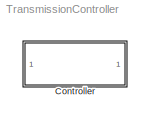
MODEL TransmissionController
KIND model
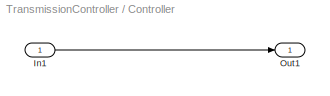
BLOCK [SubSystem] Controller
  FunctionWithSeparateData = off
  MaskHideContents = off
  MinAlgLoopOccurrences = off
  Opaque = off
  Ports = [1, 1]
  PropExecContextOutsideSubsystem = off
  RTWSystemCode = Auto
  RequestExecContextInheritance = off
  SID = 1
BLOCK [Inport] Controller/In1
  IconDisplay = Port number
  SID = 2
BLOCK [Outport] Controller/Out1
  IconDisplay = Port number
  SID = 3
LINE Controller/In1:1 -> Controller/Out1:1
